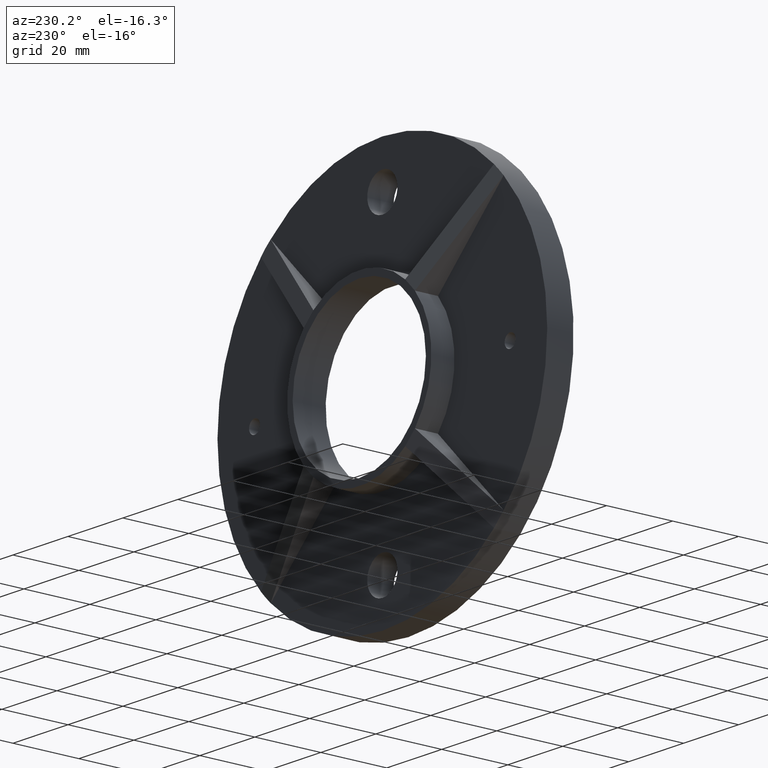
[diagram: clean part render]
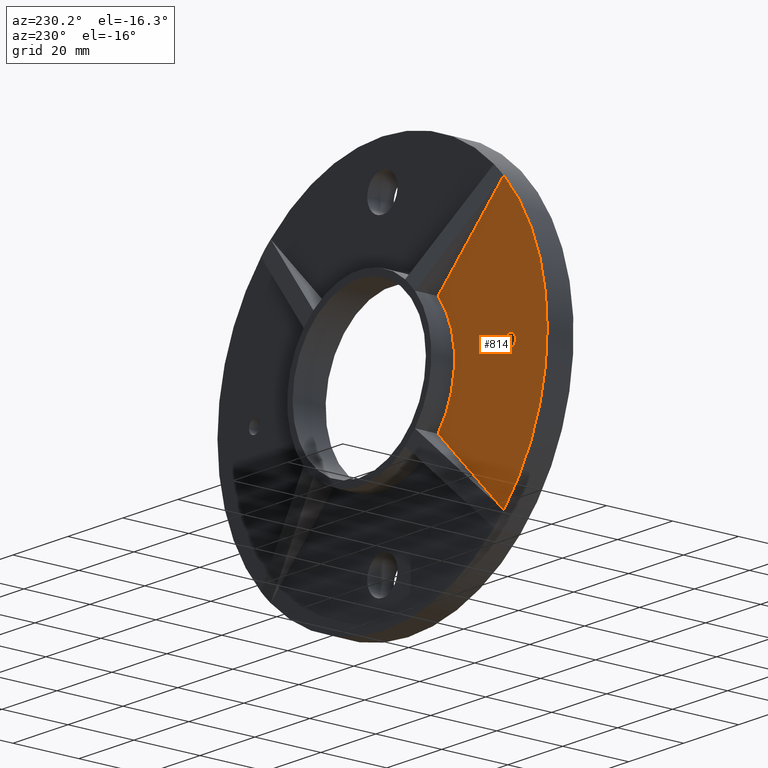
[diagram: same view with one face highlighted and labeled with its STEP entity id]
A machine part, auxiliary view. The second image highlights one B-rep face of the part: STEP entity #814.
In plain terms, the highlighted planar face has unit normal (0, 1, 0).
Its self-contained STEP definition (entity closure, byte-faithful):
#247 = EDGE_LOOP ( 'NONE', ( #5650, #6219, #7935, #2899 ) ) ;
#692 = DIRECTION ( 'NONE',  ( 0.000000000000000000, 1.000000000000000000, 0.000000000000000000 ) ) ;
#694 = CIRCLE ( 'NONE', #4848, 2.000000000000003109 ) ;
#814 = ADVANCED_FACE ( 'NONE', ( #10981, #5847 ), #4742, .T. ) ;
#1214 = DIRECTION ( 'NONE',  ( -0.7071067811865487940, 0.000000000000000000, 0.7071067811865463515 ) ) ;
#1265 = CARTESIAN_POINT ( 'NONE',  ( -20.24494882683449504, 8.000000000000000000, 16.70941492090170755 ) ) ;
#1922 = CARTESIAN_POINT ( 'NONE',  ( -20.24494882683444885, 8.000000000000000000, -16.70941492090176084 ) ) ;
#2014 = EDGE_CURVE ( 'NONE', #8090, #6468, #5664, .T. ) ;
#2543 = VERTEX_POINT ( 'NONE', #9905 ) ;
#2752 = VERTEX_POINT ( 'NONE', #10597 ) ;
#2805 = EDGE_CURVE ( 'NONE', #2543, #6468, #7155, .T. ) ;
#2899 = ORIENTED_EDGE ( 'NONE', *, *, #2805, .F. ) ;
#3150 = DIRECTION ( 'NONE',  ( 0.000000000000000000, 1.000000000000000000, 0.000000000000000000 ) ) ;
#3163 = VERTEX_POINT ( 'NONE', #11457 ) ;
#3265 = EDGE_CURVE ( 'NONE', #8090, #3163, #3407, .T. ) ;
#3270 = CARTESIAN_POINT ( 'NONE',  ( 0.000000000000000000, 8.000000000000000000, 0.000000000000000000 ) ) ;
#3374 = AXIS2_PLACEMENT_3D ( 'NONE', #10587, #4135, #10539 ) ;
#3407 = LINE ( 'NONE', #1922, #4841 ) ;
#4135 = DIRECTION ( 'NONE',  ( 0.000000000000000000, 1.000000000000000000, 0.000000000000000000 ) ) ;
#4175 = EDGE_CURVE ( 'NONE', #2752, #2752, #694, .T. ) ;
#4708 = CARTESIAN_POINT ( 'NONE',  ( 0.000000000000000000, 8.000000000000000000, 0.000000000000000000 ) ) ;
#4742 = PLANE ( 'NONE',  #5598 ) ;
#4841 = VECTOR ( 'NONE', #6049, 999.9999999999998863 ) ;
#4848 = AXIS2_PLACEMENT_3D ( 'NONE', #9708, #692, #7030 ) ;
#5080 = AXIS2_PLACEMENT_3D ( 'NONE', #3270, #3150, #5084 ) ;
#5084 = DIRECTION ( 'NONE',  ( 0.000000000000000000, 0.000000000000000000, 1.000000000000000000 ) ) ;
#5598 = AXIS2_PLACEMENT_3D ( 'NONE', #4708, #11098, #5667 ) ;
#5650 = ORIENTED_EDGE ( 'NONE', *, *, #11553, .F. ) ;
#5664 = CIRCLE ( 'NONE', #3374, 60.00000000000000000 ) ;
#5667 = DIRECTION ( 'NONE',  ( 0.000000000000000000, -0.000000000000000000, 1.000000000000000000 ) ) ;
#5847 = FACE_OUTER_BOUND ( 'NONE', #247, .T. ) ;
#5896 = ORIENTED_EDGE ( 'NONE', *, *, #4175, .F. ) ;
#6049 = DIRECTION ( 'NONE',  ( 0.7071067811865464625, -0.000000000000000000, 0.7071067811865486830 ) ) ;
#6219 = ORIENTED_EDGE ( 'NONE', *, *, #3265, .F. ) ;
#6468 = VERTEX_POINT ( 'NONE', #11559 ) ;
#7030 = DIRECTION ( 'NONE',  ( 0.000000000000000000, 0.000000000000000000, 1.000000000000000000 ) ) ;
#7155 = LINE ( 'NONE', #1265, #9155 ) ;
#7935 = ORIENTED_EDGE ( 'NONE', *, *, #2014, .T. ) ;
#8090 = VERTEX_POINT ( 'NONE', #10403 ) ;
#8659 = CIRCLE ( 'NONE', #5080, 26.25000000000000355 ) ;
#9155 = VECTOR ( 'NONE', #1214, 999.9999999999998863 ) ;
#9708 = CARTESIAN_POINT ( 'NONE',  ( -46.50000000000000000, 8.000000000000000000, 0.000000000000000000 ) ) ;
#9905 = CARTESIAN_POINT ( 'NONE',  ( -20.24494882683449504, 8.000000000000000000, 16.70941492090170755 ) ) ;
#10403 = CARTESIAN_POINT ( 'NONE',  ( -44.15732934749923544, 8.000000000000000000, -40.62179544156661137 ) ) ;
#10539 = DIRECTION ( 'NONE',  ( 0.000000000000000000, 0.000000000000000000, 1.000000000000000000 ) ) ;
#10587 = CARTESIAN_POINT ( 'NONE',  ( 0.000000000000000000, 8.000000000000000000, 0.000000000000000000 ) ) ;
#10597 = CARTESIAN_POINT ( 'NONE',  ( -46.50000000000000000, 8.000000000000000000, 2.000000000000003109 ) ) ;
#10981 = FACE_BOUND ( 'NONE', #11092, .T. ) ;
#11092 = EDGE_LOOP ( 'NONE', ( #5896 ) ) ;
#11098 = DIRECTION ( 'NONE',  ( 0.000000000000000000, 1.000000000000000000, 0.000000000000000000 ) ) ;
#11457 = CARTESIAN_POINT ( 'NONE',  ( -20.24494882683444175, 8.000000000000000000, -16.70941492090177150 ) ) ;
#11553 = EDGE_CURVE ( 'NONE', #3163, #2543, #8659, .T. ) ;
#11559 = CARTESIAN_POINT ( 'NONE',  ( -44.15732934749894412, 8.000000000000000000, 40.62179544156693112 ) ) ;